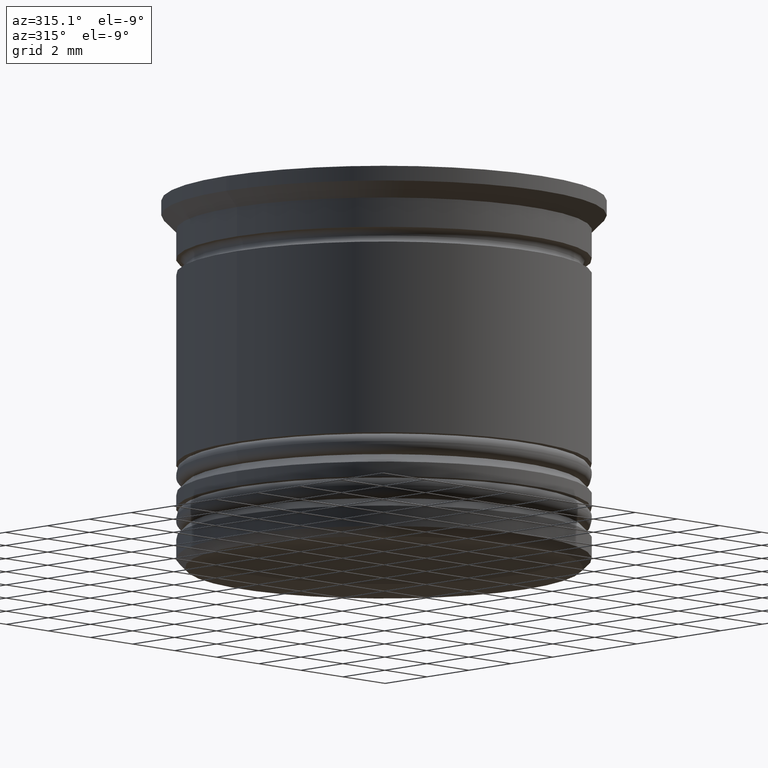
[diagram: clean part render]
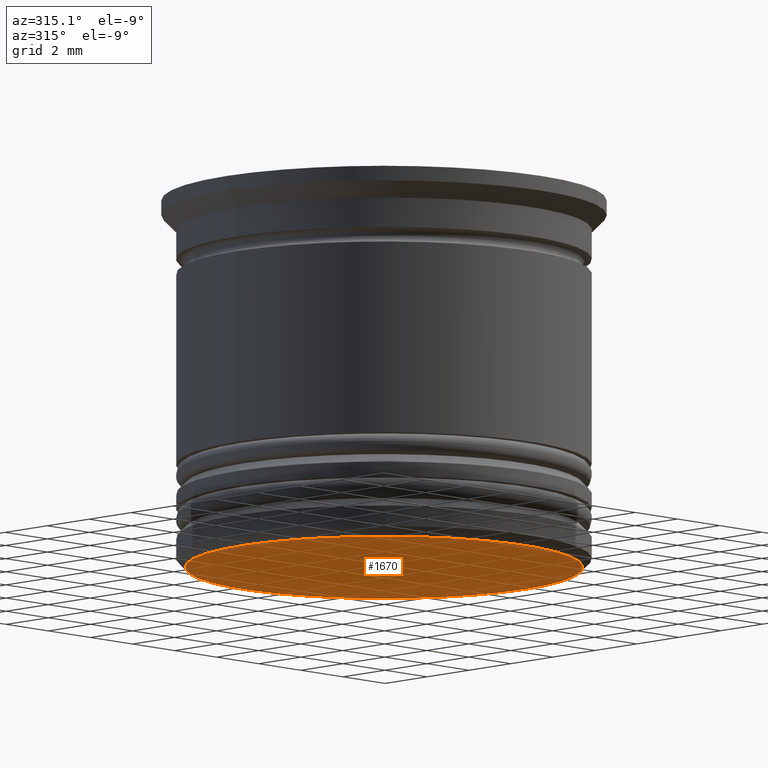
[diagram: same view with one face highlighted and labeled with its STEP entity id]
A machine part, auxiliary view. The second image highlights one B-rep face of the part: STEP entity #1670.
In plain terms, the highlighted planar face has unit normal (0, 0, -1).
Its self-contained STEP definition (entity closure, byte-faithful):
#32 = EDGE_CURVE ( 'NONE', #1782, #519, #145, .T. ) ;
#45 = AXIS2_PLACEMENT_3D ( 'NONE', #296, #911, #1256 ) ;
#69 = CARTESIAN_POINT ( 'NONE',  ( 0.000000000000000000, 0.000000000000000000, -12.50000000000000000 ) ) ;
#97 = EDGE_LOOP ( 'NONE', ( #1675, #1520 ) ) ;
#145 = CIRCLE ( 'NONE', #1598, 6.699999999999996625 ) ;
#245 = DIRECTION ( 'NONE',  ( 0.000000000000000000, 0.000000000000000000, -1.000000000000000000 ) ) ;
#274 = DIRECTION ( 'NONE',  ( -1.000000000000000000, 0.000000000000000000, 0.000000000000000000 ) ) ;
#296 = CARTESIAN_POINT ( 'NONE',  ( 0.000000000000000000, 7.000000000000000888, -12.50000000000000000 ) ) ;
#316 = CIRCLE ( 'NONE', #1727, 6.699999999999996625 ) ;
#519 = VERTEX_POINT ( 'NONE', #1806 ) ;
#911 = DIRECTION ( 'NONE',  ( 0.000000000000000000, 0.000000000000000000, -1.000000000000000000 ) ) ;
#927 = CARTESIAN_POINT ( 'NONE',  ( 0.000000000000000000, 0.000000000000000000, -12.50000000000000000 ) ) ;
#984 = CARTESIAN_POINT ( 'NONE',  ( -6.699999999999996625, 8.388830574159365932E-16, -12.50000000000000000 ) ) ;
#1218 = PLANE ( 'NONE',  #45 ) ;
#1256 = DIRECTION ( 'NONE',  ( -1.000000000000000000, 0.000000000000000000, -0.000000000000000000 ) ) ;
#1341 = EDGE_CURVE ( 'NONE', #519, #1782, #316, .T. ) ;
#1419 = DIRECTION ( 'NONE',  ( 0.000000000000000000, 0.000000000000000000, -1.000000000000000000 ) ) ;
#1520 = ORIENTED_EDGE ( 'NONE', *, *, #32, .T. ) ;
#1598 = AXIS2_PLACEMENT_3D ( 'NONE', #69, #245, #1932 ) ;
#1670 = ADVANCED_FACE ( 'NONE', ( #1671 ), #1218, .T. ) ;
#1671 = FACE_OUTER_BOUND ( 'NONE', #97, .T. ) ;
#1675 = ORIENTED_EDGE ( 'NONE', *, *, #1341, .T. ) ;
#1727 = AXIS2_PLACEMENT_3D ( 'NONE', #927, #1419, #274 ) ;
#1782 = VERTEX_POINT ( 'NONE', #984 ) ;
#1806 = CARTESIAN_POINT ( 'NONE',  ( 6.699999999999996625, 0.000000000000000000, -12.50000000000000000 ) ) ;
#1932 = DIRECTION ( 'NONE',  ( -1.000000000000000000, 0.000000000000000000, 0.000000000000000000 ) ) ;